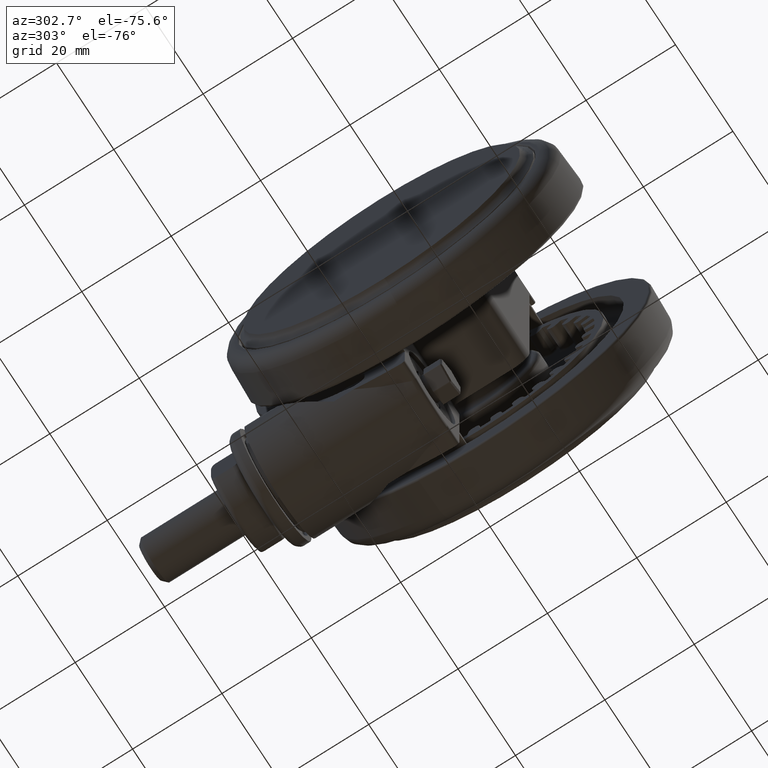
[diagram: clean part render]
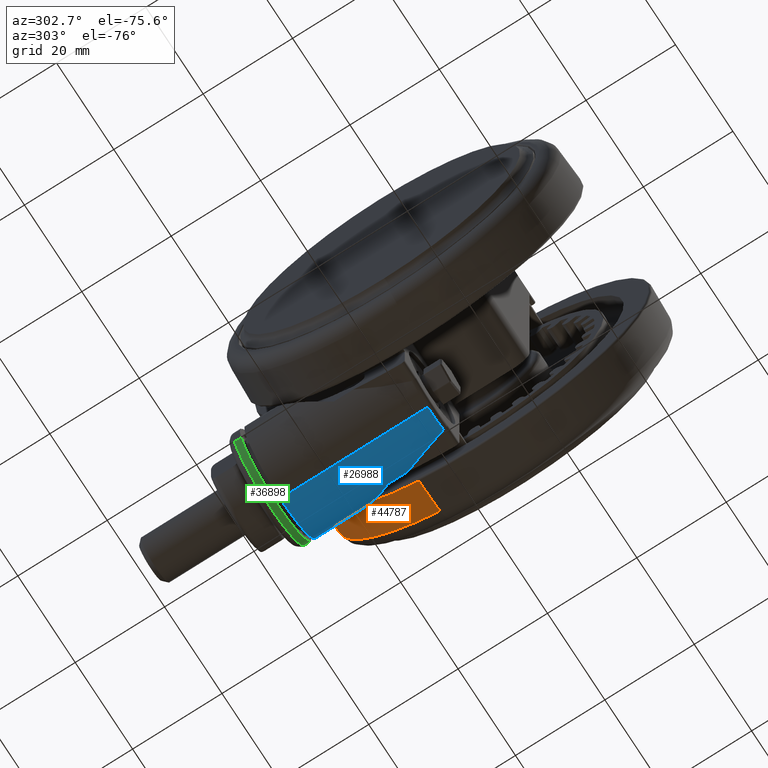
[diagram: same view with three faces highlighted in distinct colors, each labeled with its STEP entity id]
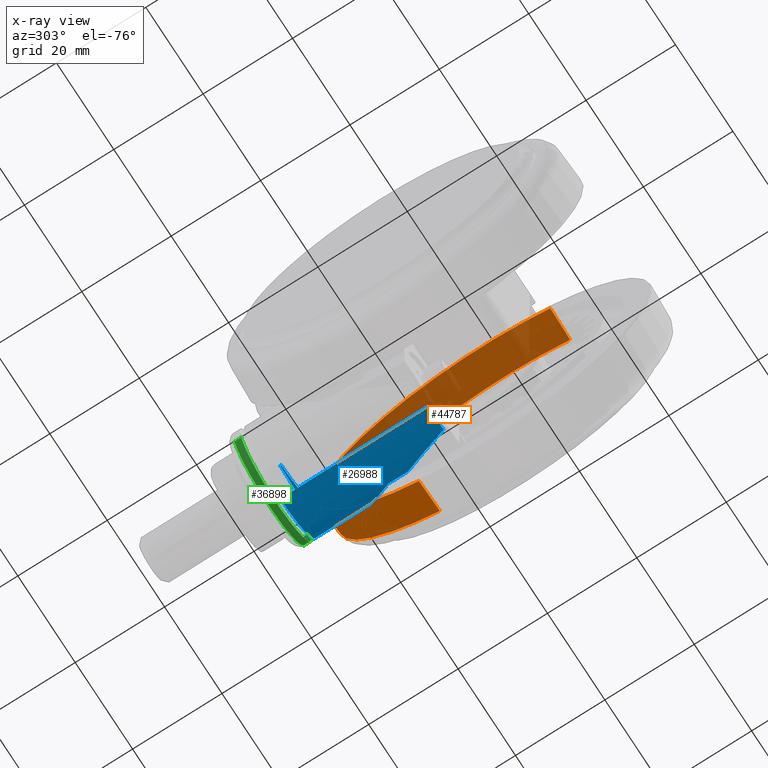
[diagram: x-ray of the same camera — body ghosted, the three highlighted faces saturated]
A machine part, auxiliary view with three faces highlighted in distinct colors.
The next image is the same camera in x-ray (body ghosted, the three faces saturated) — at least one of them is partly hidden behind the body in this view.
Their STEP definitions:

[orange] entity #44787 — the highlighted conical surface has half-angle 3 deg.
#4070 = EDGE_CURVE ( 'NONE', #42241, #54992, #6335, .T. ) ;
#4977 = VECTOR ( 'NONE', #35099, 1000.000000000000100 ) ;
#6335 = CIRCLE ( 'NONE', #17345, 37.12628851691039200 ) ;
#6669 = CARTESIAN_POINT ( 'NONE',  ( -1.614114277251059200E-013, 37.49999999999996400, -11.77383202187853900 ) ) ;
#9689 = CIRCLE ( 'NONE', #43239, 37.50000000000000000 ) ;
#11127 = DIRECTION ( 'NONE',  ( -3.164135620181696100E-015, 1.000000000000000000, 0.0000000000000000000 ) ) ;
#11182 = DIRECTION ( 'NONE',  ( 0.0000000000000000000, 0.0000000000000000000, 1.000000000000000000 ) ) ;
#11260 = CARTESIAN_POINT ( 'NONE',  ( -3.816391647148975600E-014, -3.469446951953614200E-014, -4.642992131271190800 ) ) ;
#11862 = VECTOR ( 'NONE', #41948, 1000.000000000000100 ) ;
#12705 = ORIENTED_EDGE ( 'NONE', *, *, #21505, .T. ) ;
#13151 = DIRECTION ( 'NONE',  ( 0.0000000000000000000, 0.0000000000000000000, 1.000000000000000000 ) ) ;
#15523 = EDGE_CURVE ( 'NONE', #54992, #42774, #23755, .T. ) ;
#17345 = AXIS2_PLACEMENT_3D ( 'NONE', #11260, #11182, #11127 ) ;
#19544 = AXIS2_PLACEMENT_3D ( 'NONE', #22644, #27108, #35923 ) ;
#20354 = FACE_OUTER_BOUND ( 'NONE', #30278, .T. ) ;
#20511 = ORIENTED_EDGE ( 'NONE', *, *, #4070, .F. ) ;
#21505 = EDGE_CURVE ( 'NONE', #50708, #42774, #9689, .T. ) ;
#22644 = CARTESIAN_POINT ( 'NONE',  ( -3.816391647148975600E-014, -3.469446951953614200E-014, -4.642992131271190800 ) ) ;
#23755 = LINE ( 'NONE', #50537, #11862 ) ;
#27067 = ORIENTED_EDGE ( 'NONE', *, *, #31773, .T. ) ;
#27108 = DIRECTION ( 'NONE',  ( 0.0000000000000000000, 0.0000000000000000000, -1.000000000000000000 ) ) ;
#28790 = LINE ( 'NONE', #57614, #4977 ) ;
#30278 = EDGE_LOOP ( 'NONE', ( #54999, #20511, #27067, #12705 ) ) ;
#31773 = EDGE_CURVE ( 'NONE', #42241, #50708, #28790, .T. ) ;
#35099 = DIRECTION ( 'NONE',  ( 1.655980633645485100E-016, -0.05233595624293729800, -0.9986295347545742800 ) ) ;
#35923 = DIRECTION ( 'NONE',  ( 3.164135620181696100E-015, -1.000000000000000000, 0.0000000000000000000 ) ) ;
#37801 = CARTESIAN_POINT ( 'NONE',  ( 8.049116928532383700E-014, -37.50000000000003600, -11.77383202187853900 ) ) ;
#39970 = CARTESIAN_POINT ( 'NONE',  ( -3.816391647148975600E-014, -3.469446951953614200E-014, -11.77383202187853900 ) ) ;
#41354 = CONICAL_SURFACE ( 'NONE', #19544, 37.12628851691039200, 0.05235987755982334000 ) ;
#41948 = DIRECTION ( 'NONE',  ( -1.720073694938714200E-016, 0.05233595624293729800, -0.9986295347545742800 ) ) ;
#42241 = VERTEX_POINT ( 'NONE', #56262 ) ;
#42774 = VERTEX_POINT ( 'NONE', #6669 ) ;
#43239 = AXIS2_PLACEMENT_3D ( 'NONE', #39970, #13151, #44460 ) ;
#44460 = DIRECTION ( 'NONE',  ( -3.164135620181695400E-015, 1.000000000000000000, 0.0000000000000000000 ) ) ;
#44787 = ADVANCED_FACE ( 'NONE', ( #20354 ), #41354, .T. ) ;
#50537 = CARTESIAN_POINT ( 'NONE',  ( -1.601831874526341400E-013, 37.12628851691035700, -4.642992131271190800 ) ) ;
#50708 = VERTEX_POINT ( 'NONE', #37801 ) ;
#52443 = CARTESIAN_POINT ( 'NONE',  ( -1.556365284129886000E-013, 37.12628851691035700, -4.642992131271190800 ) ) ;
#54992 = VERTEX_POINT ( 'NONE', #52443 ) ;
#54999 = ORIENTED_EDGE ( 'NONE', *, *, #15523, .F. ) ;
#56262 = CARTESIAN_POINT ( 'NONE',  ( 7.476203643036353500E-014, -37.12628851691042800, -4.642992131271190800 ) ) ;
#57614 = CARTESIAN_POINT ( 'NONE',  ( 7.930869547000908900E-014, -37.12628851691042800, -4.642992131271190800 ) ) ;

[blue] entity #26988 — the highlighted cylindrical surface (partial cylindrical patch) has radius 12.5 mm, axis along (0, -1, 0).
#518 = VERTEX_POINT ( 'NONE', #51241 ) ;
#520 = CARTESIAN_POINT ( 'NONE',  ( 29.16997050767032500, -27.55787948304757900, -20.65829342374514300 ) ) ;
#723 = CARTESIAN_POINT ( 'NONE',  ( 26.42804262372865800, -29.08659917187923200, -15.84968783692747300 ) ) ;
#922 = CARTESIAN_POINT ( 'NONE',  ( 24.49248942067594800, -29.31797930364726700, -14.80904340306899400 ) ) ;
#1088 = CARTESIAN_POINT ( 'NONE',  ( 23.31428401112358600, -29.37165578230730700, -14.34769827546677800 ) ) ;
#1213 = CARTESIAN_POINT ( 'NONE',  ( 18.11152963872072500, -35.10651760786633000, -11.36999533167786100 ) ) ;
#1281 = CARTESIAN_POINT ( 'NONE',  ( 23.31548342637228900, -29.37070368477839100, -14.34884894354390100 ) ) ;
#1571 = CARTESIAN_POINT ( 'NONE',  ( -5.594567348987595800, -25.87857832605796600, -23.84999999999985200 ) ) ;
#1762 = CARTESIAN_POINT ( 'NONE',  ( 0.9252950319632753400, -37.48858264997260600, -14.34999999999990000 ) ) ;
#2302 = EDGE_LOOP ( 'NONE', ( #30188, #44193, #2355, #52336, #2757, #35360, #33967, #41199, #21020, #20411, #26836, #37729 ) ) ;
#2355 = ORIENTED_EDGE ( 'NONE', *, *, #49705, .T. ) ;
#2757 = ORIENTED_EDGE ( 'NONE', *, *, #9912, .T. ) ;
#2798 = CARTESIAN_POINT ( 'NONE',  ( 0.9252950319632753400, -37.48858264997260600, -14.34999999999990000 ) ) ;
#3221 = CARTESIAN_POINT ( 'NONE',  ( 0.9317838385842407400, -37.48842207149811400, -14.34769849742418500 ) ) ;
#3967 = VERTEX_POINT ( 'NONE', #22952 ) ;
#4476 = CARTESIAN_POINT ( 'NONE',  ( 23.31308438640588300, -29.37260792630304000, -14.34654799560086900 ) ) ;
#4573 = DIRECTION ( 'NONE',  ( -0.9199289582488630000, 0.3920850823165320000, 0.0000000000000000000 ) ) ;
#5014 = CARTESIAN_POINT ( 'NONE',  ( 4.930159462539856800, -39.19111541757814600, -14.34654799559195800 ) ) ;
#5055 = CARTESIAN_POINT ( 'NONE',  ( 29.04385837673793300, -27.69095264748567000, -20.05295726341705300 ) ) ;
#5123 = LINE ( 'NONE', #46965, #27513 ) ;
#5247 = CARTESIAN_POINT ( 'NONE',  ( 26.38844356317489900, -29.09395007485297300, -15.82300875197052300 ) ) ;
#5323 = AXIS2_PLACEMENT_3D ( 'NONE', #1571, #32884, #6063 ) ;
#5439 = CARTESIAN_POINT ( 'NONE',  ( 23.60577569781473900, -29.36313950020495200, -14.45213350522544000 ) ) ;
#5531 = CARTESIAN_POINT ( 'NONE',  ( 24.78200206689732700, -30.76904332859885500, -13.74103255576278400 ) ) ;
#5716 = CARTESIAN_POINT ( 'NONE',  ( 29.66415180218153200, -27.31827406439273900, -23.84999999999985200 ) ) ;
#5721 = CARTESIAN_POINT ( 'NONE',  ( 16.77774446726649100, -35.76312936821035700, -11.34857666086773300 ) ) ;
#6063 = DIRECTION ( 'NONE',  ( 0.3920850823165320000, 0.9199289582488630000, 0.0000000000000000000 ) ) ;
#6276 = VERTEX_POINT ( 'NONE', #5014 ) ;
#6835 = B_SPLINE_CURVE_WITH_KNOTS ( 'NONE', 3,
 ( #16546, #3221, #39038, #12224 ),
 .UNSPECIFIED., .F., .F.,
 ( 4, 4 ),
 ( 0.02513255973794679600, 0.02514281156387576000 ),
 .UNSPECIFIED. ) ;
#6908 = CARTESIAN_POINT ( 'NONE',  ( -9.838920298287710900, -36.18626324123486200, -18.19262737854695200 ) ) ;
#9553 = CARTESIAN_POINT ( 'NONE',  ( 28.76201439406101900, -27.98267684534257800, -19.00912385999964400 ) ) ;
#9755 = CARTESIAN_POINT ( 'NONE',  ( 26.24848674829535300, -29.11902976308429200, -15.73062577244991200 ) ) ;
#9912 = EDGE_CURVE ( 'NONE', #36254, #3967, #5123, .T. ) ;
#10237 = CARTESIAN_POINT ( 'NONE',  ( 14.98437326665872500, -36.56063401611770300, -11.45348235776330600 ) ) ;
#10306 = CARTESIAN_POINT ( 'NONE',  ( 23.31308438640588300, -29.37260792630304000, -14.34654799560086900 ) ) ;
#10803 = EDGE_CURVE ( 'NONE', #33066, #34502, #28290, .T. ) ;
#11597 = CARTESIAN_POINT ( 'NONE',  ( -8.939369643000450300, -36.43084796507443500, -17.94102574426757700 ) ) ;
#12224 = CARTESIAN_POINT ( 'NONE',  ( 0.9252950319632753400, -37.48858264997260600, -14.34999999999990000 ) ) ;
#12567 = DIRECTION ( 'NONE',  ( -0.9199289582488630000, 0.3920850823165320500, 0.0000000000000000000 ) ) ;
#13008 = CARTESIAN_POINT ( 'NONE',  ( -9.838920298287710900, -36.18626324123486200, -18.19262737854695200 ) ) ;
#13517 = EDGE_CURVE ( 'NONE', #54272, #36254, #23260, .T. ) ;
#14092 = CARTESIAN_POINT ( 'NONE',  ( 28.40541583139583200, -28.33964729604600300, -18.03722452611911800 ) ) ;
#14282 = CARTESIAN_POINT ( 'NONE',  ( 25.62255553552599000, -29.21446435662012700, -15.35253948476875000 ) ) ;
#14563 = CARTESIAN_POINT ( 'NONE',  ( 24.11719272140011200, -31.29553324559880400, -13.24000522865224600 ) ) ;
#14758 = CARTESIAN_POINT ( 'NONE',  ( 12.24711182085247100, -37.56595503123612900, -11.90843218864362100 ) ) ;
#16129 = CARTESIAN_POINT ( 'NONE',  ( -8.047576973147602800, -36.63755342782558700, -17.64847011463574600 ) ) ;
#16546 = CARTESIAN_POINT ( 'NONE',  ( 0.9350282310641288000, -37.48834115037787700, -14.34654799559192800 ) ) ;
#16788 = VERTEX_POINT ( 'NONE', #20073 ) ;
#18061 = DIRECTION ( 'NONE',  ( -0.9199289582488630000, 0.3920850823165320000, 0.0000000000000000000 ) ) ;
#18370 = CARTESIAN_POINT ( 'NONE',  ( 29.46994308100311200, -27.23549990460441400, -23.84999999999983800 ) ) ;
#18552 = CARTESIAN_POINT ( 'NONE',  ( 28.25633415388930200, -28.45681878934140100, -17.73119965019458600 ) ) ;
#18746 = CARTESIAN_POINT ( 'NONE',  ( 24.92552523292591700, -29.28403882434345100, -15.00601695592809600 ) ) ;
#18960 = VECTOR ( 'NONE', #46038, 999.9999999999998900 ) ;
#19040 = CARTESIAN_POINT ( 'NONE',  ( 22.66250292775442400, -32.35555896070135200, -12.43901870895684200 ) ) ;
#19233 = CARTESIAN_POINT ( 'NONE',  ( 8.558466214006276800, -38.60881370955682700, -12.89794383538071700 ) ) ;
#20073 = CARTESIAN_POINT ( 'NONE',  ( 19.86202474426823300, -50.31649802061431100, -23.84999999999985200 ) ) ;
#20377 = LINE ( 'NONE', #5716, #18960 ) ;
#20411 = ORIENTED_EDGE ( 'NONE', *, *, #10803, .T. ) ;
#20601 = CARTESIAN_POINT ( 'NONE',  ( -5.375620969938281300, -37.12361168986900900, -16.69575081813920600 ) ) ;
#21004 = EDGE_CURVE ( 'NONE', #34502, #44839, #44053, .T. ) ;
#21020 = ORIENTED_EDGE ( 'NONE', *, *, #30724, .F. ) ;
#21408 = AXIS2_PLACEMENT_3D ( 'NONE', #26493, #4573, #26691 ) ;
#21793 = VERTEX_POINT ( 'NONE', #1762 ) ;
#21889 = VERTEX_POINT ( 'NONE', #24819 ) ;
#22875 = CARTESIAN_POINT ( 'NONE',  ( 29.38333142184239900, -27.33097615111210700, -21.85375921167916500 ) ) ;
#22952 = CARTESIAN_POINT ( 'NONE',  ( 25.39081661291547900, -30.25816305940098900, -14.34654799560087900 ) ) ;
#23072 = CARTESIAN_POINT ( 'NONE',  ( 27.86621615589254500, -28.67606848673524300, -17.13550476935125400 ) ) ;
#23256 = CARTESIAN_POINT ( 'NONE',  ( 24.87959204858776400, -29.28796210245716800, -14.98447742585981900 ) ) ;
#23260 = B_SPLINE_CURVE_WITH_KNOTS ( 'NONE', 3,
 ( #37103, #1281, #1088, #10306 ),
 .UNSPECIFIED., .F., .F.,
 ( 4, 4 ),
 ( 0.0000000000000000000, 5.654332367517219900E-006 ),
 .UNSPECIFIED. ) ;
#23351 = CARTESIAN_POINT ( 'NONE',  ( 25.39081661291547900, -30.25816305940098900, -14.34654799560087900 ) ) ;
#23528 = CARTESIAN_POINT ( 'NONE',  ( 21.48544207740459900, -33.14900644454169800, -11.97651548264947500 ) ) ;
#23730 = CARTESIAN_POINT ( 'NONE',  ( 4.930159462539856800, -39.19111541757814600, -14.34654799559195800 ) ) ;
#24686 = CARTESIAN_POINT ( 'NONE',  ( -9.925653904101906700, -36.15954390094101000, -18.21123958841919000 ) ) ;
#24819 = CARTESIAN_POINT ( 'NONE',  ( 29.66415180218153200, -27.31827406439273900, -23.84999999999985200 ) ) ;
#25075 = CARTESIAN_POINT ( 'NONE',  ( -2.691874596266542700, -37.41418932212195600, -15.68238596931576700 ) ) ;
#26493 = CARTESIAN_POINT ( 'NONE',  ( 24.76308827322488400, -38.81738604250352200, -23.84999999999985200 ) ) ;
#26691 = DIRECTION ( 'NONE',  ( -0.3920850823165320500, -0.9199289582488630000, 0.0000000000000000000 ) ) ;
#26836 = ORIENTED_EDGE ( 'NONE', *, *, #21004, .T. ) ;
#26988 = ADVANCED_FACE ( 'NONE', ( #30025 ), #40538, .T. ) ;
#27354 = CARTESIAN_POINT ( 'NONE',  ( 29.19315823979032500, -27.53328508382044500, -20.78090547420896800 ) ) ;
#27513 = VECTOR ( 'NONE', #28952, 999.9999999999998900 ) ;
#27543 = CARTESIAN_POINT ( 'NONE',  ( 26.94590930944639200, -28.98868621264434300, -16.20237817685914900 ) ) ;
#27731 = CARTESIAN_POINT ( 'NONE',  ( 24.71974011124244800, -29.30103997053691600, -14.91067650727147300 ) ) ;
#28030 = CARTESIAN_POINT ( 'NONE',  ( 19.42277607115257300, -34.40909919356519000, -11.48061234786702800 ) ) ;
#28290 = B_SPLINE_CURVE_WITH_KNOTS ( 'NONE', 3,
 ( #6908, #29222, #24686, #38232 ),
 .UNSPECIFIED., .F., .F.,
 ( 4, 4 ),
 ( 0.0000000000000000000, 0.0001385659790266888500 ),
 .UNSPECIFIED. ) ;
#28952 = DIRECTION ( 'NONE',  ( 0.9199289582488630000, -0.3920850823165320500, -0.0000000000000000000 ) ) ;
#29222 = CARTESIAN_POINT ( 'NONE',  ( -9.882409998469958300, -36.17443854159574100, -18.20479131792697200 ) ) ;
#29594 = CARTESIAN_POINT ( 'NONE',  ( 0.02110193596462646800, -37.51089998822661900, -14.67072933138166700 ) ) ;
#30025 = FACE_OUTER_BOUND ( 'NONE', #2302, .T. ) ;
#30188 = ORIENTED_EDGE ( 'NONE', *, *, #43931, .T. ) ;
#30724 = EDGE_CURVE ( 'NONE', #33066, #21793, #43742, .T. ) ;
#30825 = EDGE_CURVE ( 'NONE', #16788, #44839, #43620, .T. ) ;
#30896 = EDGE_CURVE ( 'NONE', #6276, #518, #40823, .T. ) ;
#31616 = CIRCLE ( 'NONE', #32991, 12.49999999999999800 ) ;
#31695 = VECTOR ( 'NONE', #12567, 999.9999999999998900 ) ;
#31857 = CARTESIAN_POINT ( 'NONE',  ( 29.13419837066379600, -27.59576271394194400, -20.47511163794530700 ) ) ;
#31965 = EDGE_CURVE ( 'NONE', #21889, #56434, #20377, .T. ) ;
#32050 = CARTESIAN_POINT ( 'NONE',  ( 26.41605657139349000, -29.08883783971181800, -15.84158351494477700 ) ) ;
#32250 = CARTESIAN_POINT ( 'NONE',  ( 24.02600726054022200, -29.34698365095140800, -14.61159278328556100 ) ) ;
#32529 = CARTESIAN_POINT ( 'NONE',  ( 17.66706106289678900, -35.33226691023542500, -11.35163379551320200 ) ) ;
#32884 = DIRECTION ( 'NONE',  ( 0.9199289582488630000, -0.3920850823165320000, 0.0000000000000000000 ) ) ;
#32991 = AXIS2_PLACEMENT_3D ( 'NONE', #44881, #18061, #49359 ) ;
#33066 = VERTEX_POINT ( 'NONE', #13008 ) ;
#33967 = ORIENTED_EDGE ( 'NONE', *, *, #30896, .T. ) ;
#34502 = VERTEX_POINT ( 'NONE', #57640 ) ;
#35360 = ORIENTED_EDGE ( 'NONE', *, *, #39943, .T. ) ;
#36254 = VERTEX_POINT ( 'NONE', #4476 ) ;
#36357 = CARTESIAN_POINT ( 'NONE',  ( 28.95485826367333000, -27.78369131825804300, -19.70052890635582400 ) ) ;
#36550 = CARTESIAN_POINT ( 'NONE',  ( 26.34684091830020600, -29.10157196729723600, -15.79519409571200600 ) ) ;
#36741 = CARTESIAN_POINT ( 'NONE',  ( 23.31668263212594600, -29.36975163382753000, -14.34999999999990000 ) ) ;
#37042 = CARTESIAN_POINT ( 'NONE',  ( 16.33101420197844400, -35.96926918354813600, -11.36368929508307500 ) ) ;
#37088 = CARTESIAN_POINT ( 'NONE',  ( 23.31668263212594600, -29.36975163382753000, -14.34999999999990000 ) ) ;
#37103 = CARTESIAN_POINT ( 'NONE',  ( 23.31668263212594600, -29.36975163382753000, -14.34999999999990000 ) ) ;
#37729 = ORIENTED_EDGE ( 'NONE', *, *, #30825, .F. ) ;
#37903 = B_SPLINE_CURVE_WITH_KNOTS ( 'NONE', 3,
 ( #18370, #45182, #22875, #54165, #27354, #520, #31857, #5055, #36357, #9553, #40892, #14092, #45373, #18552, #49859, #23072, #54344, #27543, #723, #32050, #5247, #36550, #9755, #41074, #14282, #45561, #18746, #50043, #23256, #54546, #27731, #922, #32250, #5439, #36741 ),
 .UNSPECIFIED., .F., .F.,
 ( 4, 2, 2, 1, 1, 2, 2, 2, 1, 2, 2, 2, 1, 1, 1, 1, 2, 2, 1, 1, 1, 1, 4 ),
 ( 0.4996769114355315000, 0.6247576835766433000, 0.6325752318354628300, 0.6403927800942823500, 0.6560278766119209700, 0.6872980696471979700, 0.7498384557177522100, 0.7654735522353903800, 0.7811086487530286600, 0.8123788417883051100, 0.8749192278588575600, 0.8768736149235627500, 0.8788280019882677200, 0.8827367761176783100, 0.8905543243765000600, 0.9061894208941432300, 0.9374596139294295600, 0.9394140009941349700, 0.9413683880588401600, 0.9452771621882509700, 0.9530947104470721700, 0.9687298069647147800, 1.000000000000000000 ),
 .UNSPECIFIED. ) ;
#38232 = CARTESIAN_POINT ( 'NONE',  ( -9.968634172649906600, -36.14122517971745900, -18.21123958841919000 ) ) ;
#39038 = CARTESIAN_POINT ( 'NONE',  ( 0.9285394389109580300, -37.48850257136151500, -14.34884916565304800 ) ) ;
#39373 = CARTESIAN_POINT ( 'NONE',  ( 19.86202474426823300, -50.31649802061431100, -23.84999999999985200 ) ) ;
#39405 = VECTOR ( 'NONE', #53060, 999.9999999999998900 ) ;
#39943 = EDGE_CURVE ( 'NONE', #3967, #6276, #57727, .T. ) ;
#40538 = CYLINDRICAL_SURFACE ( 'NONE', #21408, 12.49999999999999800 ) ;
#40823 = LINE ( 'NONE', #44253, #39405 ) ;
#40892 = CARTESIAN_POINT ( 'NONE',  ( 28.61366092978293100, -28.13334327560058400, -18.56616766091367800 ) ) ;
#41074 = CARTESIAN_POINT ( 'NONE',  ( 26.04665783428974300, -29.15262772125807800, -15.60282020329314700 ) ) ;
#41199 = ORIENTED_EDGE ( 'NONE', *, *, #43769, .T. ) ;
#41558 = CARTESIAN_POINT ( 'NONE',  ( 14.07800607944254000, -36.91886333825158300, -11.57232519769639000 ) ) ;
#42920 = CARTESIAN_POINT ( 'NONE',  ( -9.838920298287710900, -36.18626324123486200, -18.19262737854695200 ) ) ;
#43620 = LINE ( 'NONE', #39373, #31695 ) ;
#43742 = B_SPLINE_CURVE_WITH_KNOTS ( 'NONE', 3,
 ( #42920, #11597, #16129, #47423, #20601, #51920, #25075, #56415, #29594, #2798 ),
 .UNSPECIFIED., .F., .F.,
 ( 4, 2, 2, 2, 4 ),
 ( 0.001168786101779600400, 0.004046430306325157200, 0.006924074510870711700, 0.009801718715416265400, 0.01267936291996182200 ),
 .UNSPECIFIED. ) ;
#43769 = EDGE_CURVE ( 'NONE', #518, #21793, #6835, .T. ) ;
#43931 = EDGE_CURVE ( 'NONE', #16788, #21889, #31616, .T. ) ;
#44053 = CIRCLE ( 'NONE', #5323, 12.50000000000000000 ) ;
#44193 = ORIENTED_EDGE ( 'NONE', *, *, #31965, .T. ) ;
#44253 = CARTESIAN_POINT ( 'NONE',  ( 21.57935740481670100, -46.28720918347946200, -14.34654799559195800 ) ) ;
#44839 = VERTEX_POINT ( 'NONE', #54493 ) ;
#44881 = CARTESIAN_POINT ( 'NONE',  ( 24.76308827322488400, -38.81738604250352200, -23.84999999999985200 ) ) ;
#45182 = CARTESIAN_POINT ( 'NONE',  ( 29.46994141877284800, -27.23549920065708800, -22.84462937589613000 ) ) ;
#45373 = CARTESIAN_POINT ( 'NONE',  ( 28.35971483303391600, -28.37897514263889300, -17.93542093854425100 ) ) ;
#45500 = CARTESIAN_POINT ( 'NONE',  ( 29.46994308100311200, -27.23549990460441400, -23.84999999999983800 ) ) ;
#45561 = CARTESIAN_POINT ( 'NONE',  ( 25.22412066839993700, -29.25797705747123700, -15.14716744873108900 ) ) ;
#45847 = CARTESIAN_POINT ( 'NONE',  ( 23.03664868890705400, -32.08991529524130500, -12.62237326224486500 ) ) ;
#46038 = DIRECTION ( 'NONE',  ( -0.9199289582488630000, 0.3920850823165320500, 0.0000000000000000000 ) ) ;
#46043 = CARTESIAN_POINT ( 'NONE',  ( 11.31851900217184200, -37.85565463172399300, -12.12724328409385600 ) ) ;
#46965 = CARTESIAN_POINT ( 'NONE',  ( 27.94681914163717800, -31.34756290151792500, -14.34654799560087900 ) ) ;
#47423 = CARTESIAN_POINT ( 'NONE',  ( -6.265654378729885300, -36.98398831280658100, -17.02599872651548600 ) ) ;
#49359 = DIRECTION ( 'NONE',  ( -0.3920850823165320500, -0.9199289582488630000, 0.0000000000000000000 ) ) ;
#49705 = EDGE_CURVE ( 'NONE', #56434, #54272, #37903, .T. ) ;
#49859 = CARTESIAN_POINT ( 'NONE',  ( 28.08523272284655500, -28.57081064621789000, -17.42821774746800000 ) ) ;
#50043 = CARTESIAN_POINT ( 'NONE',  ( 24.91134006987837400, -29.28525961806190400, -14.99934645520407300 ) ) ;
#50338 = CARTESIAN_POINT ( 'NONE',  ( 21.88562291940069200, -32.88602657725167000, -12.11544611505337200 ) ) ;
#50523 = CARTESIAN_POINT ( 'NONE',  ( 6.737728561777758300, -38.96372704641672200, -13.56226829896612300 ) ) ;
#51241 = CARTESIAN_POINT ( 'NONE',  ( 0.9350282310641288000, -37.48834115037787700, -14.34654799559192800 ) ) ;
#51920 = CARTESIAN_POINT ( 'NONE',  ( -3.588694864286535500, -37.33873477882804100, -16.02406071253404800 ) ) ;
#52336 = ORIENTED_EDGE ( 'NONE', *, *, #13517, .T. ) ;
#53060 = DIRECTION ( 'NONE',  ( -0.9199289582488630000, 0.3920850823165320500, 0.0000000000000000000 ) ) ;
#54165 = CARTESIAN_POINT ( 'NONE',  ( 29.20481132818714100, -27.52090399684478700, -20.84466366442676500 ) ) ;
#54272 = VERTEX_POINT ( 'NONE', #37088 ) ;
#54344 = CARTESIAN_POINT ( 'NONE',  ( 27.36476519821051700, -28.87383836560860200, -16.56426332098969600 ) ) ;
#54493 = CARTESIAN_POINT ( 'NONE',  ( -10.49563087794424900, -37.37769030416875200, -23.84999999999985200 ) ) ;
#54546 = CARTESIAN_POINT ( 'NONE',  ( 24.83186235203199400, -29.29197393518422400, -14.96222662705271800 ) ) ;
#54833 = CARTESIAN_POINT ( 'NONE',  ( 20.26643726242849300, -33.91820925071287000, -11.62705444279575500 ) ) ;
#56415 = CARTESIAN_POINT ( 'NONE',  ( -0.8853407350264429500, -37.50045230735907600, -15.00513446580412200 ) ) ;
#56434 = VERTEX_POINT ( 'NONE', #45500 ) ;
#57640 = CARTESIAN_POINT ( 'NONE',  ( -9.968634172649906600, -36.14122517971745900, -18.21123958841919000 ) ) ;
#57727 = B_SPLINE_CURVE_WITH_KNOTS ( 'NONE', 3,
 ( #23351, #5531, #14563, #45847, #19040, #50338, #23528, #54833, #28030, #1213, #32529, #5721, #37042, #10237, #41558, #14758, #46043, #19233, #50523, #23730 ),
 .UNSPECIFIED., .F., .F.,
 ( 4, 2, 2, 2, 2, 2, 2, 2, 2, 4 ),
 ( 2.453269466693398600E-017, 0.002949696317115271900, 0.004424544475672895000, 0.005899392634230518600, 0.008849088951345764100, 0.01032393710990338500, 0.01179878526846100800, 0.01474848158557624600, 0.01769817790269148600, 0.02359757053692197000 ),
 .UNSPECIFIED. ) ;

[green] entity #36898 — the highlighted cylindrical surface (partial cylindrical patch) has radius 12.5 mm, axis along (0, 1, 0).
#282 = ORIENTED_EDGE ( 'NONE', *, *, #15170, .T. ) ;
#2431 = VECTOR ( 'NONE', #57673, 999.9999999999998900 ) ;
#4325 = DIRECTION ( 'NONE',  ( -0.9199289582488630000, 0.3920850823165320000, 0.0000000000000000000 ) ) ;
#7654 = EDGE_LOOP ( 'NONE', ( #23659, #282, #37825, #19749 ) ) ;
#9855 = VERTEX_POINT ( 'NONE', #23859 ) ;
#12429 = CARTESIAN_POINT ( 'NONE',  ( 198.8118039740709000, -116.7264030576969400, -35.87052193708463200 ) ) ;
#13040 = CARTESIAN_POINT ( 'NONE',  ( 25.71850744522511100, -42.95190252763249100, -35.87052193708463200 ) ) ;
#13524 = CIRCLE ( 'NONE', #34407, 12.49999999999999800 ) ;
#14035 = CYLINDRICAL_SURFACE ( 'NONE', #43597, 12.50000000000000400 ) ;
#14823 = DIRECTION ( 'NONE',  ( 0.9199289582488630000, -0.3920850823165320000, 0.0000000000000000000 ) ) ;
#15170 = EDGE_CURVE ( 'NONE', #42819, #18098, #39208, .T. ) ;
#16097 = CARTESIAN_POINT ( 'NONE',  ( 24.33861400785184500, -42.36377490415770100, -35.87052193708463200 ) ) ;
#16844 = FACE_OUTER_BOUND ( 'NONE', #7654, .T. ) ;
#16867 = CARTESIAN_POINT ( 'NONE',  ( 25.68301723147581900, -39.20947112481525200, -23.84999999999989800 ) ) ;
#18098 = VERTEX_POINT ( 'NONE', #13040 ) ;
#19749 = ORIENTED_EDGE ( 'NONE', *, *, #49259, .F. ) ;
#21369 = DIRECTION ( 'NONE',  ( 0.1075522578899190800, 0.2523443023473953600, 0.9616417549667789500 ) ) ;
#23659 = ORIENTED_EDGE ( 'NONE', *, *, #36126, .T. ) ;
#23859 = CARTESIAN_POINT ( 'NONE',  ( 28.40731389247311600, -36.64329496894759300, -11.82947806291516100 ) ) ;
#24891 = EDGE_CURVE ( 'NONE', #18098, #9855, #13524, .T. ) ;
#25277 = CIRCLE ( 'NONE', #43928, 12.50000000000000000 ) ;
#26333 = CARTESIAN_POINT ( 'NONE',  ( 201.5006104213189000, -110.4177954990120400, -11.82947806291516100 ) ) ;
#27281 = VECTOR ( 'NONE', #52739, 999.9999999999998900 ) ;
#31144 = CARTESIAN_POINT ( 'NONE',  ( 27.06291066884911300, -39.79759874829004200, -23.84999999999989800 ) ) ;
#32602 = CARTESIAN_POINT ( 'NONE',  ( 200.1562071976949000, -113.5720992783544900, -23.84999999999989800 ) ) ;
#34407 = AXIS2_PLACEMENT_3D ( 'NONE', #31144, #4325, #35643 ) ;
#35308 = LINE ( 'NONE', #26333, #2431 ) ;
#35643 = DIRECTION ( 'NONE',  ( -0.1075522578899193600, -0.2523443023473953600, -0.9616417549667789500 ) ) ;
#36126 = EDGE_CURVE ( 'NONE', #52979, #42819, #25277, .T. ) ;
#36898 = ADVANCED_FACE ( 'NONE', ( #16844 ), #14035, .T. ) ;
#37825 = ORIENTED_EDGE ( 'NONE', *, *, #24891, .T. ) ;
#39208 = LINE ( 'NONE', #12429, #27281 ) ;
#41627 = DIRECTION ( 'NONE',  ( 0.1075522578899201500, 0.2523443023473958500, 0.9616417549667787300 ) ) ;
#42819 = VERTEX_POINT ( 'NONE', #16097 ) ;
#43597 = AXIS2_PLACEMENT_3D ( 'NONE', #32602, #14823, #41627 ) ;
#43928 = AXIS2_PLACEMENT_3D ( 'NONE', #16867, #48162, #21369 ) ;
#48162 = DIRECTION ( 'NONE',  ( 0.9199289582488630000, -0.3920850823165320000, 0.0000000000000000000 ) ) ;
#49259 = EDGE_CURVE ( 'NONE', #52979, #9855, #35308, .T. ) ;
#49320 = CARTESIAN_POINT ( 'NONE',  ( 27.02742045509979400, -36.05516734547277500, -11.82947806291516100 ) ) ;
#52739 = DIRECTION ( 'NONE',  ( 0.9199289582488630000, -0.3920850823165320500, 0.0000000000000000000 ) ) ;
#52979 = VERTEX_POINT ( 'NONE', #49320 ) ;
#57673 = DIRECTION ( 'NONE',  ( 0.9199289582488630000, -0.3920850823165320500, 0.0000000000000000000 ) ) ;